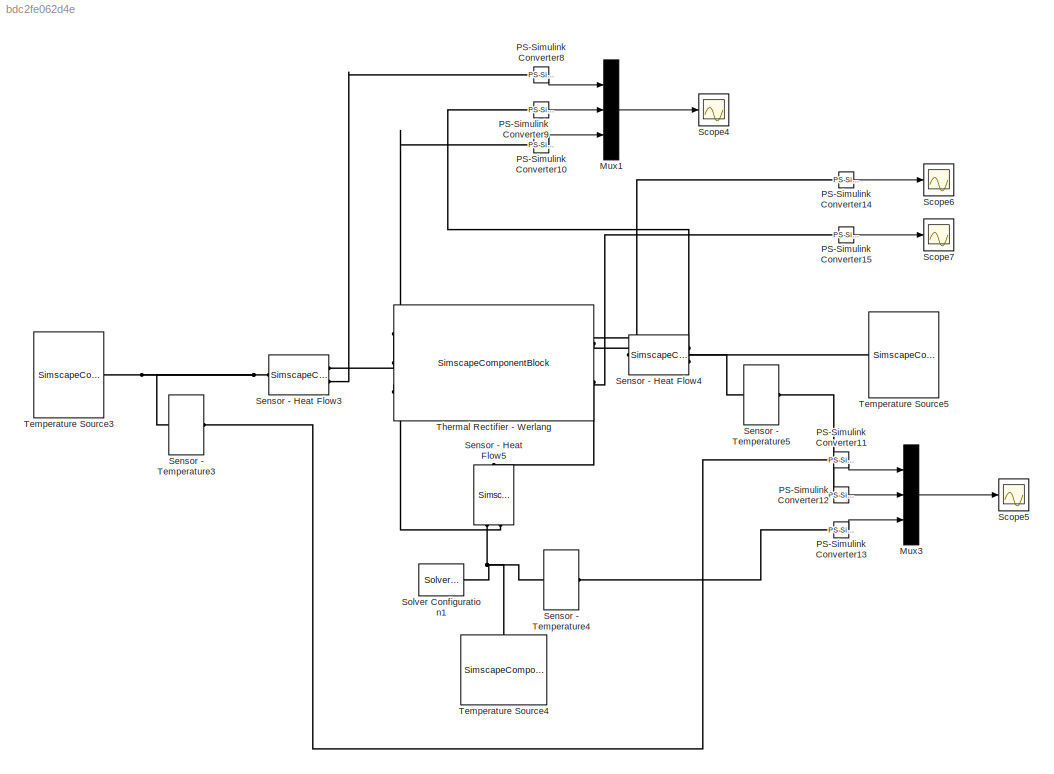
MODEL slx_bdc2fe062d4e
KIND model
CONFIG AbsTol = auto
CONFIG EnableMultiTasking = off
CONFIG FixedStep = auto
CONFIG MaxStep = auto
CONFIG MinStep = auto
CONFIG RelTol = 1e-3
CONFIG SampleTimeConstraint = Unconstrained
CONFIG SolverName = VariableStepAuto
CONFIG StartTime = 0.0
CONFIG StopTime = 1000.0
BLOCK [Mux] Mux1
  DisplayOption = bar
  Inputs = 3
  Ports = [3, 1]
BLOCK [Mux] Mux3
  DisplayOption = bar
  Inputs = 3
  Ports = [3, 1]
BLOCK [Reference] PS-Simulink Converter10  REF=nesl_utility/PS-Simulink
Converter
  Ports = [0, 1, 0, 0, 0, 1]
  SourceBlock = nesl_utility/PS-Simulink\nConverter
  SourceProductBaseCode = SS,PW,VE
  SourceType = PS-Simulink\nConverter
BLOCK [Reference] PS-Simulink Converter11  REF=nesl_utility/PS-Simulink
Converter
  Ports = [0, 1, 0, 0, 0, 1]
  SourceBlock = nesl_utility/PS-Simulink\nConverter
  SourceProductBaseCode = SS,PW,VE
  SourceType = PS-Simulink\nConverter
BLOCK [Reference] PS-Simulink Converter12  REF=nesl_utility/PS-Simulink
Converter
  Ports = [0, 1, 0, 0, 0, 1]
  SourceBlock = nesl_utility/PS-Simulink\nConverter
  SourceProductBaseCode = SS,PW,VE
  SourceType = PS-Simulink\nConverter
BLOCK [Reference] PS-Simulink Converter13  REF=nesl_utility/PS-Simulink
Converter
  Ports = [0, 1, 0, 0, 0, 1]
  SourceBlock = nesl_utility/PS-Simulink\nConverter
  SourceProductBaseCode = SS,PW,VE
  SourceType = PS-Simulink\nConverter
BLOCK [Reference] PS-Simulink Converter14  REF=nesl_utility/PS-Simulink
Converter
  Ports = [0, 1, 0, 0, 0, 1]
  SourceBlock = nesl_utility/PS-Simulink\nConverter
  SourceProductBaseCode = SS,PW,VE
  SourceType = PS-Simulink\nConverter
BLOCK [Reference] PS-Simulink Converter15  REF=nesl_utility/PS-Simulink
Converter
  Ports = [0, 1, 0, 0, 0, 1]
  SourceBlock = nesl_utility/PS-Simulink\nConverter
  SourceProductBaseCode = SS,PW,VE
  SourceType = PS-Simulink\nConverter
BLOCK [Reference] PS-Simulink Converter8  REF=nesl_utility/PS-Simulink
Converter
  Ports = [0, 1, 0, 0, 0, 1]
  SourceBlock = nesl_utility/PS-Simulink\nConverter
  SourceProductBaseCode = SS,PW,VE
  SourceType = PS-Simulink\nConverter
BLOCK [Reference] PS-Simulink Converter9  REF=nesl_utility/PS-Simulink
Converter
  Ports = [0, 1, 0, 0, 0, 1]
  SourceBlock = nesl_utility/PS-Simulink\nConverter
  SourceProductBaseCode = SS,PW,VE
  SourceType = PS-Simulink\nConverter
BLOCK [Scope] Scope4
  Floating = off
  NumInputPorts = 1
  Ports = [1]
  ScopeSpecificationString = Simulink.scopes.TimeScopeBlockCfg('CurrentConfiguration', extmgr.ConfigurationSet(extmgr.Configuration('Core','General UI',true),extmgr.Configuration('Core','Source UI',true),extmgr.Configuration('Sources','WiredSimulink',true,'DataLoggingVariableName','ScopeData1'),extmgr.Configuration('Visuals','Time Domain',true,'SerializedDisplays',{struct('MinYLimReal','-0.00076','MaxYLimReal','0.00108','YLab...<+1874ch>
BLOCK [Scope] Scope5
  Floating = off
  NumInputPorts = 1
  Ports = [1]
  ScopeSpecificationString = Simulink.scopes.TimeScopeBlockCfg('CurrentConfiguration', extmgr.ConfigurationSet(extmgr.Configuration('Core','General UI',true),extmgr.Configuration('Core','Source UI',true),extmgr.Configuration('Sources','WiredSimulink',true,'DataLoggingVariableName','ScopeData2'),extmgr.Configuration('Visuals','Time Domain',true,'SerializedDisplays',{struct('MinYLimReal','-0.125','MaxYLimReal','1.125','YLabelRe...<+1452ch>
BLOCK [Scope] Scope6
  Floating = off
  NumInputPorts = 1
  Ports = [1]
  ScopeSpecificationString = Simulink.scopes.TimeScopeBlockCfg('CurrentConfiguration', extmgr.ConfigurationSet(extmgr.Configuration('Core','General UI',true),extmgr.Configuration('Core','Source UI',true),extmgr.Configuration('Sources','WiredSimulink',true,'DataLoggingVariableName','ScopeData3'),extmgr.Configuration('Visuals','Time Domain',true,'SerializedDisplays',{struct('MinYLimReal','-0.125','MaxYLimReal','1.125','YLabelRe...<+1843ch>
BLOCK [Scope] Scope7
  Floating = off
  NumInputPorts = 1
  Ports = [1]
  ScopeSpecificationString = Simulink.scopes.TimeScopeBlockCfg('CurrentConfiguration', extmgr.ConfigurationSet(extmgr.Configuration('Core','General UI',true),extmgr.Configuration('Core','Source UI',true),extmgr.Configuration('Sources','WiredSimulink',true,'DataLoggingVariableName','ScopeData4'),extmgr.Configuration('Visuals','Time Domain',true,'SerializedDisplays',{struct('MinYLimReal','-1.00000','MaxYLimReal','1.00000','YLab...<+1410ch>
BLOCK [SimscapeComponentBlock] Sensor - Heat Flow3
  ClassName = sensor_heat_flow
  ComponentPath = sensor_heat_flow
  ComponentVariantNames = ["sensor_heat_flow"]
  ComponentVariants = ["sensor_heat_flow"]
  CopyFcn = simscape.engine.sli.internal.componentblockcallback(gcbh,'COPY')
  InternalSimscapePortConfiguration = {"Bottom":[],"Left":[{"id":"inp","label":"","type":"quantum_thermal"}],"Right":[{"id":"out","label":"","type":"quantum_thermal"},{"id":"sense","label":"","type":"output"}],"Top":[]}  <repeated x3 — deduplicated; at blocks: Sensor - Heat Flow3, Sensor - Heat Flow4, Sensor - Heat Flow5>
  J = 0
  J_nominal_specify = off
  J_nominal_unit = 1
  J_nominal_value = 1
  J_priority = None
  J_specify = off
  J_unit = 1
  MaskType = Heat flow rate sensor
  Ports = [0, 0, 0, 0, 0, 1, 2]
  PreCopyFcn = simscape.engine.sli.internal.componentblockcallback(gcbh,'PRECOPY')
  PreDeleteFcn = simscape.engine.sli.internal.componentblockcallback(gcbh,'PREDELETE')
  SchemaVersion = 1
  SourceFile = sensor_heat_flow
BLOCK [SimscapeComponentBlock] Sensor - Heat Flow4
  ClassName = sensor_heat_flow
  ComponentPath = sensor_heat_flow
  ComponentVariantNames = ["sensor_heat_flow"]
  ComponentVariants = ["sensor_heat_flow"]
  CopyFcn = simscape.engine.sli.internal.componentblockcallback(gcbh,'COPY')
  J = 0
  J_nominal_specify = off
  J_nominal_unit = 1
  J_nominal_value = 1
  J_priority = None
  J_specify = off
  J_unit = 1
  MaskType = Heat flow rate sensor
  NameLocation = top
  Ports = [0, 0, 0, 0, 0, 1, 2]
  PreCopyFcn = simscape.engine.sli.internal.componentblockcallback(gcbh,'PRECOPY')
  PreDeleteFcn = simscape.engine.sli.internal.componentblockcallback(gcbh,'PREDELETE')
  SchemaVersion = 1
  SourceFile = sensor_heat_flow
BLOCK [SimscapeComponentBlock] Sensor - Heat Flow5
  ClassName = sensor_heat_flow
  ComponentPath = sensor_heat_flow
  ComponentVariantNames = ["sensor_heat_flow"]
  ComponentVariants = ["sensor_heat_flow"]
  CopyFcn = simscape.engine.sli.internal.componentblockcallback(gcbh,'COPY')
  J = 0
  J_nominal_specify = off
  J_nominal_unit = 1
  J_nominal_value = 1
  J_priority = None
  J_specify = off
  J_unit = 1
  MaskType = Heat flow rate sensor
  NameLocation = right
  Ports = [0, 0, 0, 0, 0, 1, 2]
  PreCopyFcn = simscape.engine.sli.internal.componentblockcallback(gcbh,'PRECOPY')
  PreDeleteFcn = simscape.engine.sli.internal.componentblockcallback(gcbh,'PREDELETE')
  SchemaVersion = 1
  SourceFile = sensor_heat_flow
BLOCK [SimscapeComponentBlock] Sensor - Temperature3
  ClassName = sensor_temperature
  ComponentPath = sensor_temperature
  ComponentVariantNames = ["sensor_temperature"]
  ComponentVariants = ["sensor_temperature"]
  CopyFcn = simscape.engine.sli.internal.componentblockcallback(gcbh,'COPY')
  InternalSimscapePortConfiguration = {"Bottom":[],"Left":[{"id":"inp","label":"","type":"quantum_thermal"}],"Right":[{"id":"sense","label":"","type":"output"}],"Top":[]}
  J = 0
  J_nominal_specify = off
  J_nominal_unit = 1
  J_nominal_value = 1
  J_priority = None
  J_specify = off
  J_unit = 1
  MaskType = Temperature sensor
  Ports = [0, 0, 0, 0, 0, 1, 1]
  PreCopyFcn = simscape.engine.sli.internal.componentblockcallback(gcbh,'PRECOPY')
  PreDeleteFcn = simscape.engine.sli.internal.componentblockcallback(gcbh,'PREDELETE')
  SchemaVersion = 1
  SourceFile = sensor_temperature
BLOCK [SimscapeComponentBlock] Sensor - Temperature4
  ClassName = sensor_temperature
  ComponentPath = sensor_temperature
  ComponentVariantNames = ["sensor_temperature"]
  ComponentVariants = ["sensor_temperature"]
  CopyFcn = simscape.engine.sli.internal.componentblockcallback(gcbh,'COPY')
  InternalSimscapePortConfiguration = {"Bottom":[],"Left":[{"id":"inp","label":"","type":"quantum_thermal"}],"Right":[{"id":"sense","label":"","type":"output"}],"Top":[]}
  J = 0
  J_nominal_specify = off
  J_nominal_unit = 1
  J_nominal_value = 1
  J_priority = None
  J_specify = off
  J_unit = 1
  MaskType = Temperature sensor
  Ports = [0, 0, 0, 0, 0, 1, 1]
  PreCopyFcn = simscape.engine.sli.internal.componentblockcallback(gcbh,'PRECOPY')
  PreDeleteFcn = simscape.engine.sli.internal.componentblockcallback(gcbh,'PREDELETE')
  SchemaVersion = 1
  SourceFile = sensor_temperature
BLOCK [SimscapeComponentBlock] Sensor - Temperature5
  ClassName = sensor_temperature
  ComponentPath = sensor_temperature
  ComponentVariantNames = ["sensor_temperature"]
  ComponentVariants = ["sensor_temperature"]
  CopyFcn = simscape.engine.sli.internal.componentblockcallback(gcbh,'COPY')
  InternalSimscapePortConfiguration = {"Bottom":[],"Left":[{"id":"inp","label":"","type":"quantum_thermal"}],"Right":[{"id":"sense","label":"","type":"output"}],"Top":[]}
  J = 0
  J_nominal_specify = off
  J_nominal_unit = 1
  J_nominal_value = 1
  J_priority = None
  J_specify = off
  J_unit = 1
  MaskType = Temperature sensor
  Ports = [0, 0, 0, 0, 0, 1, 1]
  PreCopyFcn = simscape.engine.sli.internal.componentblockcallback(gcbh,'PRECOPY')
  PreDeleteFcn = simscape.engine.sli.internal.componentblockcallback(gcbh,'PREDELETE')
  SchemaVersion = 1
  SourceFile = sensor_temperature
BLOCK [Reference] Solver Configuration1  REF=nesl_utility/Solver
Configuration
  Ports = [0, 0, 0, 0, 0, 0, 1]
  SourceBlock = nesl_utility/Solver\nConfiguration
  SourceProductBaseCode = SS,PW,VE
  SourceType = Solver\nConfiguration
BLOCK [SimscapeComponentBlock] Temperature Source3
  ClassName = source_temperature
  ComponentPath = source_temperature
  ComponentVariantNames = ["source_temperature"]
  ComponentVariants = ["source_temperature"]
  CopyFcn = simscape.engine.sli.internal.componentblockcallback(gcbh,'COPY')
  InternalSimscapePortConfiguration = {"Bottom":[],"Left":[],"Right":[{"id":"out","label":"","type":"quantum_thermal"}],"Top":[]}
  J = 0
  J_nominal_specify = off
  J_nominal_unit = 1
  J_nominal_value = 1
  J_priority = None
  J_specify = off
  J_unit = 1
  MaskType = Temperature source
  Ports = [0, 0, 0, 0, 0, 0, 1]
  PreCopyFcn = simscape.engine.sli.internal.componentblockcallback(gcbh,'PRECOPY')
  PreDeleteFcn = simscape.engine.sli.internal.componentblockcallback(gcbh,'PREDELETE')
  SchemaVersion = 1
  SourceFile = source_temperature
  temp = 1
  temp_conf = compiletime
  temp_unit = 1
BLOCK [SimscapeComponentBlock] Temperature Source4
  ClassName = source_temperature
  ComponentPath = source_temperature
  ComponentVariantNames = ["source_temperature"]
  ComponentVariants = ["source_temperature"]
  CopyFcn = simscape.engine.sli.internal.componentblockcallback(gcbh,'COPY')
  InternalSimscapePortConfiguration = {"Bottom":[],"Left":[],"Right":[{"id":"out","label":"","type":"quantum_thermal"}],"Top":[]}
  J = 0
  J_nominal_specify = off
  J_nominal_unit = 1
  J_nominal_value = 1
  J_priority = None
  J_specify = off
  J_unit = 1
  MaskType = Temperature source
  NameLocation = right
  Ports = [0, 0, 0, 0, 0, 0, 1]
  PreCopyFcn = simscape.engine.sli.internal.componentblockcallback(gcbh,'PRECOPY')
  PreDeleteFcn = simscape.engine.sli.internal.componentblockcallback(gcbh,'PREDELETE')
  SchemaVersion = 1
  SourceFile = source_temperature
  temp = 0
  temp_conf = compiletime
  temp_unit = 1
BLOCK [SimscapeComponentBlock] Temperature Source5
  ClassName = source_temperature
  ComponentPath = source_temperature
  ComponentVariantNames = ["source_temperature"]
  ComponentVariants = ["source_temperature"]
  CopyFcn = simscape.engine.sli.internal.componentblockcallback(gcbh,'COPY')
  InternalSimscapePortConfiguration = {"Bottom":[],"Left":[],"Right":[{"id":"out","label":"","type":"quantum_thermal"}],"Top":[]}
  J = 0
  J_nominal_specify = off
  J_nominal_unit = 1
  J_nominal_value = 1
  J_priority = None
  J_specify = off
  J_unit = 1
  MaskType = Temperature source
  NameLocation = top
  Ports = [0, 0, 0, 0, 0, 0, 1]
  PreCopyFcn = simscape.engine.sli.internal.componentblockcallback(gcbh,'PRECOPY')
  PreDeleteFcn = simscape.engine.sli.internal.componentblockcallback(gcbh,'PREDELETE')
  SchemaVersion = 1
  SourceFile = source_temperature
  temp = 0.3
  temp_conf = compiletime
  temp_unit = 1
BLOCK [SimscapeComponentBlock] Thermal Rectifier - Werlang
  ClassName = thermal_rectifier_Werl
  ComponentPath = thermal_rectifier_Werl
  ComponentVariantNames = ["thermal_rectifier_Werl"]
  ComponentVariants = ["thermal_rectifier_Werl"]
  CopyFcn = simscape.engine.sli.internal.componentblockcallback(gcbh,'COPY')
  InternalSimscapePortConfiguration = {"Bottom":[{"id":"gnd","label":"","type":"quantum_thermal"}],"Left":[{"id":"b1","label":"B1","type":"quantum_thermal"}],"Right":[{"id":"b2","label":"B2","type":"quantum_thermal"}],"Top":[{"id":"diag","label":"dia","type":"output"},{"id":"ofdiag","label":"ofdia","type":"output"}]}
  J1 = 0
  J1_nominal_specify = off
  J1_nominal_unit = 1
  J1_nominal_value = 1
  J1_priority = Low
  J1_specify = off
  J1_unit = 1
  J2 = 0
  J2_nominal_specify = off
  J2_nominal_unit = 1
  J2_nominal_value = 1
  J2_priority = Low
  J2_specify = off
  J2_unit = 1
  MaskType = Thermal rectifier
  Ports = [0, 0, 0, 0, 0, 3, 2]
  PreCopyFcn = simscape.engine.sli.internal.componentblockcallback(gcbh,'PRECOPY')
  PreDeleteFcn = simscape.engine.sli.internal.componentblockcallback(gcbh,'PREDELETE')
  SchemaVersion = 1
  SourceFile = thermal_rectifier_Werl
  T1 = 0.2
  T1_nominal_specify = off
  T1_nominal_unit = 1
  T1_nominal_value = 1
  T1_priority = Low
  T1_specify = off
  T1_unit = 1
  T2 = 0.2
  T2_nominal_specify = off
  T2_nominal_unit = 1
  T2_nominal_value = 1
  T2_priority = Low
  T2_specify = off
  T2_unit = 1
  d = 0.5
  d_conf = compiletime
  d_unit = 1
  k1 = 0.01
  k1_conf = compiletime
  k1_unit = 1
  k2 = 0.01
  k2_conf = compiletime
  k2_unit = 1
  p11 = 0
  p11_nominal_specify = off
  p11_nominal_unit = 1
  p11_nominal_value = 1
  p11_priority = High
  p11_specify = off
  p11_unit = 1
  p22 = 0
  p22_nominal_specify = off
  p22_nominal_unit = 1
  p22_nominal_value = 1
  p22_priority = High
  p22_specify = off
  p22_unit = 1
  p33 = 0
  p33_nominal_specify = off
  p33_nominal_unit = 1
  p33_nominal_value = 1
  p33_priority = High
  p33_specify = off
  p33_unit = 1
  p44 = 1
  p44_nominal_specify = off
  p44_nominal_unit = 1
  p44_nominal_value = 1
  p44_priority = High
  p44_specify = off
  p44_unit = 1
  w = 1
  w_conf = compiletime
  w_unit = 1
LINE Mux1:1 -> Scope4:1
LINE Mux3:1 -> Scope5:1
LINE PS-Simulink Converter10:1 -> Mux1:3
LINE PS-Simulink Converter11:1 -> Mux3:1
LINE PS-Simulink Converter12:1 -> Mux3:2
LINE PS-Simulink Converter13:1 -> Mux3:3
LINE PS-Simulink Converter14:1 -> Scope6:1
LINE PS-Simulink Converter15:1 -> Scope7:1
LINE PS-Simulink Converter8:1 -> Mux1:1
LINE PS-Simulink Converter9:1 -> Mux1:2
PLINE PS-Simulink Converter10:LConn1 -- Sensor - Heat Flow5:RConn2
PLINE PS-Simulink Converter11:LConn1 -- Sensor - Temperature3:RConn1
PLINE PS-Simulink Converter12:LConn1 -- Sensor - Temperature5:RConn1
PLINE PS-Simulink Converter13:LConn1 -- Sensor - Temperature4:RConn1
PLINE PS-Simulink Converter14:LConn1 -- Thermal Rectifier - Werlang:LConn2
PLINE PS-Simulink Converter15:LConn1 -- Thermal Rectifier - Werlang:LConn3
PLINE PS-Simulink Converter8:LConn1 -- Sensor - Heat Flow3:RConn2
PLINE PS-Simulink Converter9:LConn1 -- Sensor - Heat Flow4:RConn2
PNET net1: Sensor - Heat Flow3:LConn1 -- Sensor - Temperature3:LConn1 -- Temperature Source3:RConn1
PLINE Sensor - Heat Flow3:RConn1 -- Thermal Rectifier - Werlang:LConn1
PNET net2: Sensor - Heat Flow4:LConn1 -- Sensor - Temperature5:LConn1 -- Temperature Source5:RConn1
PLINE Sensor - Heat Flow4:RConn1 -- Thermal Rectifier - Werlang:RConn1
PLINE Sensor - Heat Flow5:LConn1 -- Thermal Rectifier - Werlang:RConn2
PNET net3: Sensor - Heat Flow5:RConn1 -- Sensor - Temperature4:LConn1 -- Solver Configuration1:RConn1 -- Temperature Source4:RConn1
note: PNET lines group multi-terminal physical nets as a canonical sorted terminal list (undirected conserving connections); 2-terminal nets keep the pairwise PLINE form
